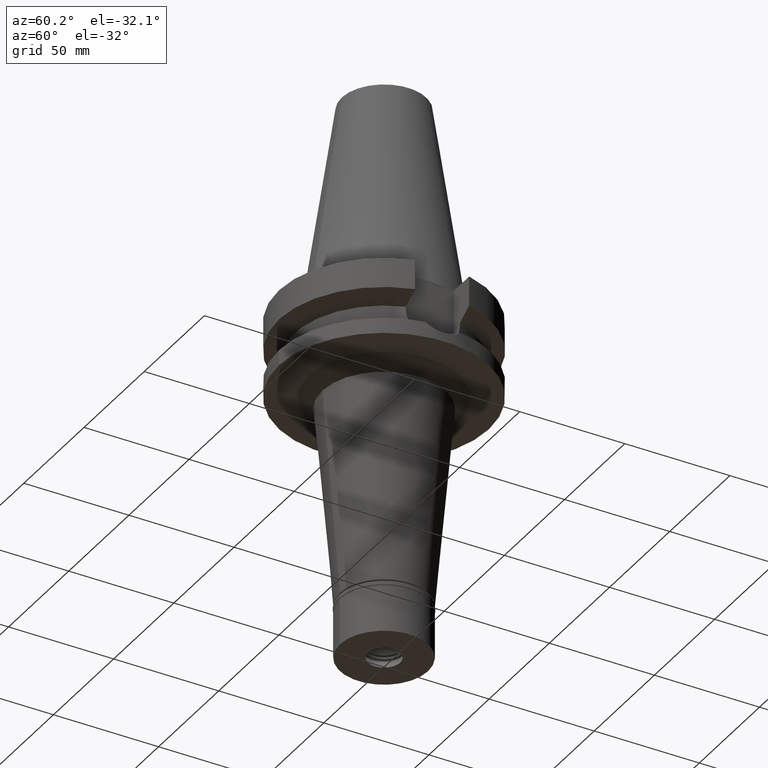
[diagram: clean part render]
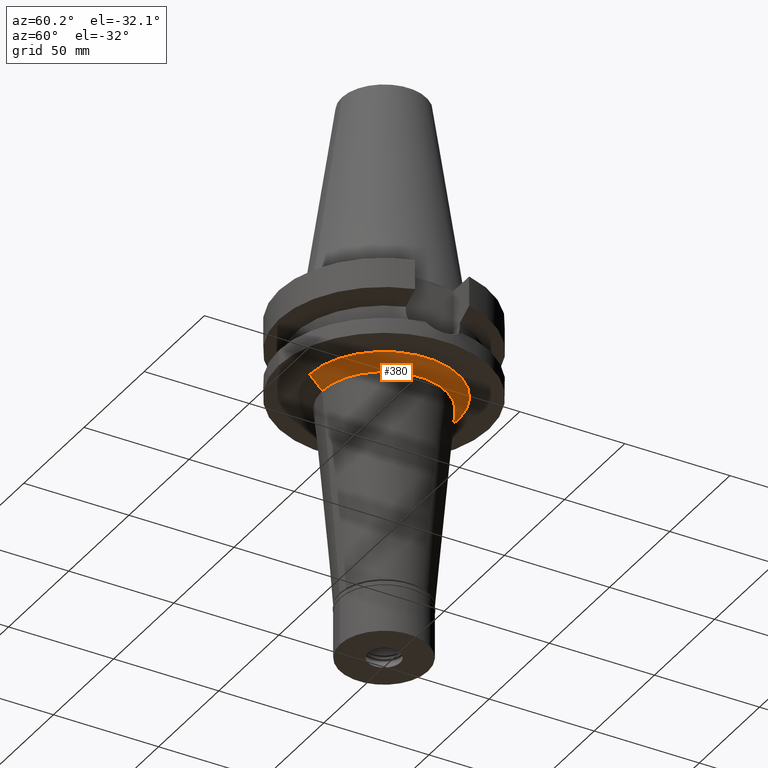
[diagram: same view with one face highlighted and labeled with its STEP entity id]
A machine part, auxiliary view. The second image highlights one B-rep face of the part: STEP entity #380.
In plain terms, the highlighted conical surface has half-angle 45 deg.
Its self-contained STEP definition (entity closure, byte-faithful):
#129 = VECTOR ( 'NONE', #252, 1000.000000000000000 ) ;
#186 = CONICAL_SURFACE ( 'NONE', #1998, 32.39016283213999259, 0.7853981633972997312 ) ;
#252 = DIRECTION ( 'NONE',  ( 0.0000000000000000000, 0.7071067811865969777, -0.7071067811864980568 ) ) ;
#365 = CARTESIAN_POINT ( 'NONE',  ( 0.0000000000000000000, 0.0000000000000000000, -41.00000000000000000 ) ) ;
#380 = ADVANCED_FACE ( 'NONE', ( #556 ), #186, .T. ) ;
#444 = EDGE_CURVE ( 'NONE', #2744, #914, #1472, .T. ) ;
#445 = LINE ( 'NONE', #1979, #129 ) ;
#556 = FACE_OUTER_BOUND ( 'NONE', #1504, .T. ) ;
#695 = ORIENTED_EDGE ( 'NONE', *, *, #838, .T. ) ;
#771 = DIRECTION ( 'NONE',  ( 0.0000000000000000000, 0.0000000000000000000, 1.000000000000000000 ) ) ;
#777 = VECTOR ( 'NONE', #2493, 1000.000000000000000 ) ;
#837 = CARTESIAN_POINT ( 'NONE',  ( 0.0000000000000000000, 35.39016283213999969, -38.00000000000000000 ) ) ;
#838 = EDGE_CURVE ( 'NONE', #3103, #3176, #1279, .T. ) ;
#873 = CARTESIAN_POINT ( 'NONE',  ( 0.0000000000000000000, -35.39016283213999969, -38.00000000000000000 ) ) ;
#914 = VERTEX_POINT ( 'NONE', #873 ) ;
#1063 = AXIS2_PLACEMENT_3D ( 'NONE', #1078, #2593, #3067 ) ;
#1078 = CARTESIAN_POINT ( 'NONE',  ( 0.0000000000000000000, 0.0000000000000000000, -38.00000000000000000 ) ) ;
#1279 = CIRCLE ( 'NONE', #3075, 29.39016283213999969 ) ;
#1472 = CIRCLE ( 'NONE', #1063, 35.39016283213999969 ) ;
#1504 = EDGE_LOOP ( 'NONE', ( #2277, #2812, #695, #2257 ) ) ;
#1534 = CARTESIAN_POINT ( 'NONE',  ( 0.0000000000000000000, -29.39016283213999969, -44.00000000000000000 ) ) ;
#1761 = DIRECTION ( 'NONE',  ( 0.0000000000000000000, -1.000000000000000000, 0.0000000000000000000 ) ) ;
#1765 = CARTESIAN_POINT ( 'NONE',  ( 0.0000000000000000000, 29.39016283213999969, -44.00000000000000000 ) ) ;
#1820 = LINE ( 'NONE', #2807, #777 ) ;
#1856 = DIRECTION ( 'NONE',  ( 0.0000000000000000000, 0.0000000000000000000, 1.000000000000000000 ) ) ;
#1979 = CARTESIAN_POINT ( 'NONE',  ( 0.0000000000000000000, -35.39016283213999969, -38.00000000000000000 ) ) ;
#1998 = AXIS2_PLACEMENT_3D ( 'NONE', #365, #1856, #2841 ) ;
#2257 = ORIENTED_EDGE ( 'NONE', *, *, #2654, .F. ) ;
#2277 = ORIENTED_EDGE ( 'NONE', *, *, #444, .T. ) ;
#2493 = DIRECTION ( 'NONE',  ( 0.0000000000000000000, -0.7071067811865969777, -0.7071067811864980568 ) ) ;
#2593 = DIRECTION ( 'NONE',  ( 0.0000000000000000000, 0.0000000000000000000, -1.000000000000000000 ) ) ;
#2654 = EDGE_CURVE ( 'NONE', #2744, #3176, #1820, .T. ) ;
#2744 = VERTEX_POINT ( 'NONE', #837 ) ;
#2807 = CARTESIAN_POINT ( 'NONE',  ( 0.0000000000000000000, 35.39016283213999969, -38.00000000000000000 ) ) ;
#2812 = ORIENTED_EDGE ( 'NONE', *, *, #2976, .T. ) ;
#2841 = DIRECTION ( 'NONE',  ( 0.0000000000000000000, 1.000000000000000000, 0.0000000000000000000 ) ) ;
#2948 = CARTESIAN_POINT ( 'NONE',  ( 0.0000000000000000000, 0.0000000000000000000, -44.00000000000000000 ) ) ;
#2976 = EDGE_CURVE ( 'NONE', #914, #3103, #445, .T. ) ;
#3067 = DIRECTION ( 'NONE',  ( 0.0000000000000000000, 1.000000000000000000, 0.0000000000000000000 ) ) ;
#3075 = AXIS2_PLACEMENT_3D ( 'NONE', #2948, #771, #1761 ) ;
#3103 = VERTEX_POINT ( 'NONE', #1534 ) ;
#3176 = VERTEX_POINT ( 'NONE', #1765 ) ;